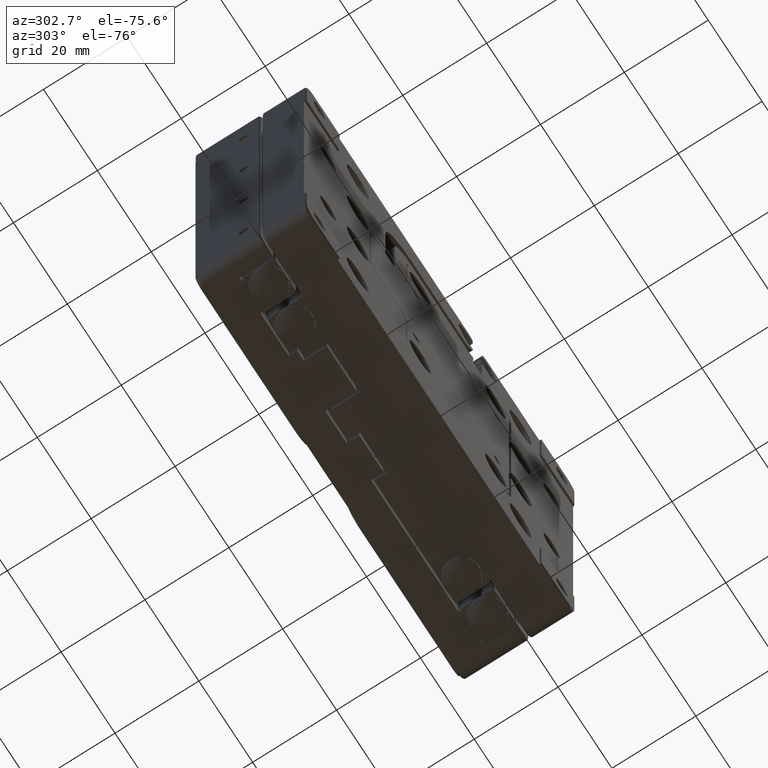
[diagram: clean part render]
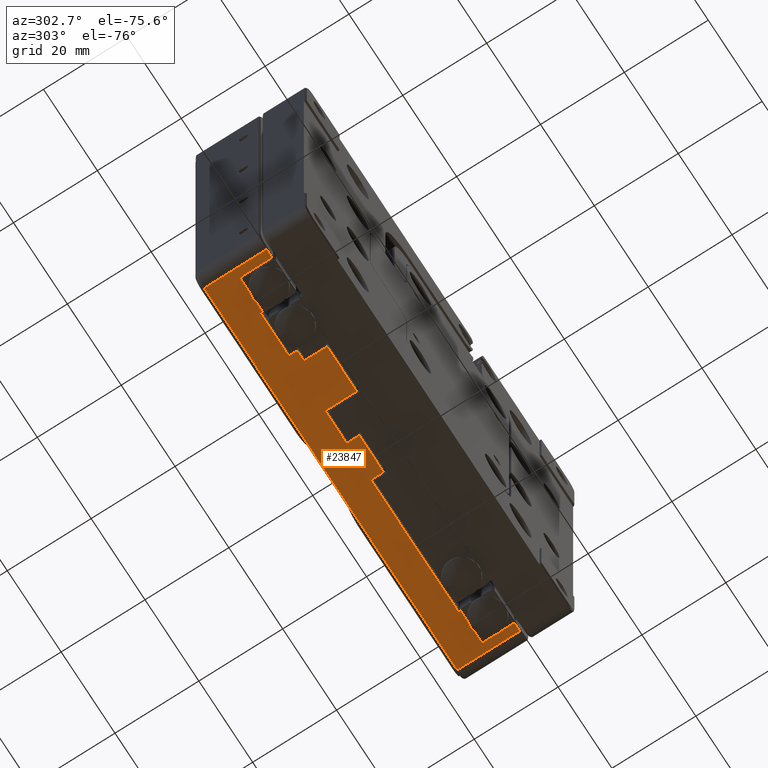
[diagram: same view with one face highlighted and labeled with its STEP entity id]
A machine part, auxiliary view. The second image highlights one B-rep face of the part: STEP entity #23847.
In plain terms, the highlighted planar face has unit normal (0, 0, -1).
Its self-contained STEP definition (entity closure, byte-faithful):
#270 = LINE ( 'NONE', #12857, #10275 ) ;
#634 = DIRECTION ( 'NONE',  ( -1.000000000000000000, 0.0000000000000000000, 0.0000000000000000000 ) ) ;
#807 = VERTEX_POINT ( 'NONE', #47446 ) ;
#926 = LINE ( 'NONE', #18123, #33596 ) ;
#1059 = EDGE_CURVE ( 'NONE', #5116, #11523, #51027, .T. ) ;
#1705 = DIRECTION ( 'NONE',  ( 0.0000000000000000000, 1.000000000000000000, 0.0000000000000000000 ) ) ;
#2328 = VECTOR ( 'NONE', #53098, 1000.000000000000000 ) ;
#2974 = VERTEX_POINT ( 'NONE', #14839 ) ;
#3600 = CARTESIAN_POINT ( 'NONE',  ( -46.99999998050000000, 0.7999999986494548100, -49.99999999986496100 ) ) ;
#4001 = CARTESIAN_POINT ( 'NONE',  ( 0.0000000000000000000, 9.000000000000001800, -50.00000000000000000 ) ) ;
#4895 = EDGE_CURVE ( 'NONE', #14455, #51653, #13799, .T. ) ;
#4983 = VERTEX_POINT ( 'NONE', #20075 ) ;
#5116 = VERTEX_POINT ( 'NONE', #31515 ) ;
#5392 = CARTESIAN_POINT ( 'NONE',  ( 0.2500000000000002200, 9.000000000000001800, -50.00000000000000000 ) ) ;
#5585 = ORIENTED_EDGE ( 'NONE', *, *, #38937, .F. ) ;
#5637 = VERTEX_POINT ( 'NONE', #39475 ) ;
#5732 = VERTEX_POINT ( 'NONE', #14512 ) ;
#5856 = ORIENTED_EDGE ( 'NONE', *, *, #43072, .F. ) ;
#6249 = ORIENTED_EDGE ( 'NONE', *, *, #20001, .F. ) ;
#6406 = CARTESIAN_POINT ( 'NONE',  ( -45.00000000000000700, 0.7999999976590731500, -49.99999999981994100 ) ) ;
#6534 = EDGE_CURVE ( 'NONE', #20882, #5116, #45702, .T. ) ;
#6672 = VERTEX_POINT ( 'NONE', #50960 ) ;
#7216 = CARTESIAN_POINT ( 'NONE',  ( 0.0000000000000000000, 7.000000000000000000, -50.00000000000000000 ) ) ;
#7227 = EDGE_CURVE ( 'NONE', #28188, #38399, #50308, .T. ) ;
#8033 = CARTESIAN_POINT ( 'NONE',  ( -36.50000000000000000, 8.249999999999998200, -50.00000000000000000 ) ) ;
#8071 = DIRECTION ( 'NONE',  ( 0.0000000000000000000, 1.000000000000000000, 0.0000000000000000000 ) ) ;
#8194 = VECTOR ( 'NONE', #50741, 1000.000000000000000 ) ;
#9048 = LINE ( 'NONE', #9943, #20382 ) ;
#9363 = DIRECTION ( 'NONE',  ( -1.000000000000000000, 0.0000000000000000000, 0.0000000000000000000 ) ) ;
#9586 = LINE ( 'NONE', #52888, #30920 ) ;
#9595 = VERTEX_POINT ( 'NONE', #33830 ) ;
#9943 = CARTESIAN_POINT ( 'NONE',  ( 37.00000000000000000, 8.750000000000000000, -50.00000000000000000 ) ) ;
#10111 = EDGE_CURVE ( 'NONE', #4983, #14455, #12071, .T. ) ;
#10275 = VECTOR ( 'NONE', #34095, 1000.000000000000000 ) ;
#10965 = CARTESIAN_POINT ( 'NONE',  ( 0.0000000000000000000, 15.70000000486000300, -50.00000000000000000 ) ) ;
#11062 = ORIENTED_EDGE ( 'NONE', *, *, #15705, .F. ) ;
#11523 = VERTEX_POINT ( 'NONE', #54824 ) ;
#12071 = LINE ( 'NONE', #39176, #24790 ) ;
#12290 = EDGE_LOOP ( 'NONE', ( #21500, #39476, #35353, #31307, #21813, #51101, #13728, #12955, #5856, #30242, #19709, #6249, #19248, #24143, #43415, #37956, #23957, #14434, #11062, #29034, #5585, #21154 ) ) ;
#12857 = CARTESIAN_POINT ( 'NONE',  ( 0.0000000000000000000, 8.500000000000000000, -49.99999999999998600 ) ) ;
#12955 = ORIENTED_EDGE ( 'NONE', *, *, #4895, .T. ) ;
#13728 = ORIENTED_EDGE ( 'NONE', *, *, #10111, .T. ) ;
#13799 = LINE ( 'NONE', #27938, #25169 ) ;
#14434 = ORIENTED_EDGE ( 'NONE', *, *, #7227, .F. ) ;
#14455 = VERTEX_POINT ( 'NONE', #25785 ) ;
#14512 = CARTESIAN_POINT ( 'NONE',  ( 45.00000000000000700, 0.7999999985597098200, -49.99999999855972300 ) ) ;
#14579 = DIRECTION ( 'NONE',  ( -1.000000000000000000, 0.0000000000000000000, 0.0000000000000000000 ) ) ;
#14839 = CARTESIAN_POINT ( 'NONE',  ( -36.50000000000000000, 9.000000000000001800, -50.00000000000000700 ) ) ;
#15010 = VERTEX_POINT ( 'NONE', #3600 ) ;
#15040 = DIRECTION ( 'NONE',  ( -0.0000000000000000000, -1.000000000000000000, -0.0000000000000000000 ) ) ;
#15426 = CARTESIAN_POINT ( 'NONE',  ( -4.499999999999997300, 8.249999999999998200, -50.00000000000000000 ) ) ;
#15592 = EDGE_CURVE ( 'NONE', #807, #5637, #270, .T. ) ;
#15705 = EDGE_CURVE ( 'NONE', #6672, #28188, #26299, .T. ) ;
#15853 = EDGE_CURVE ( 'NONE', #5732, #807, #9586, .T. ) ;
#16253 = VECTOR ( 'NONE', #51795, 1000.000000000000000 ) ;
#17550 = VECTOR ( 'NONE', #52292, 1000.000000000000000 ) ;
#17581 = EDGE_CURVE ( 'NONE', #24515, #38399, #40305, .T. ) ;
#18123 = CARTESIAN_POINT ( 'NONE',  ( -26.00000000000000400, 8.249999999999998200, -50.00000000000000000 ) ) ;
#18899 = LINE ( 'NONE', #47975, #17550 ) ;
#18978 = VECTOR ( 'NONE', #35200, 1000.000000000000000 ) ;
#19248 = ORIENTED_EDGE ( 'NONE', *, *, #38640, .F. ) ;
#19263 = VECTOR ( 'NONE', #55004, 1000.000000000000000 ) ;
#19448 = EDGE_CURVE ( 'NONE', #46479, #6672, #24832, .T. ) ;
#19709 = ORIENTED_EDGE ( 'NONE', *, *, #34519, .F. ) ;
#19771 = VECTOR ( 'NONE', #14579, 1000.000000000000000 ) ;
#19785 = CARTESIAN_POINT ( 'NONE',  ( -46.99999997153000200, 8.249999999999998200, -50.00000000000000000 ) ) ;
#20001 = EDGE_CURVE ( 'NONE', #36516, #46052, #44720, .T. ) ;
#20075 = CARTESIAN_POINT ( 'NONE',  ( -36.50000000000000700, 8.500000000000000000, -49.99999999999998600 ) ) ;
#20382 = VECTOR ( 'NONE', #48105, 1000.000000000000000 ) ;
#20463 = CARTESIAN_POINT ( 'NONE',  ( -26.00000000000000700, 9.000000000000001800, -50.00000000000000700 ) ) ;
#20882 = VERTEX_POINT ( 'NONE', #26284 ) ;
#21154 = ORIENTED_EDGE ( 'NONE', *, *, #32386, .F. ) ;
#21193 = VERTEX_POINT ( 'NONE', #20463 ) ;
#21294 = VECTOR ( 'NONE', #45068, 1000.000000000000000 ) ;
#21500 = ORIENTED_EDGE ( 'NONE', *, *, #41059, .T. ) ;
#21813 = ORIENTED_EDGE ( 'NONE', *, *, #29401, .T. ) ;
#22203 = LINE ( 'NONE', #4001, #8194 ) ;
#22957 = CARTESIAN_POINT ( 'NONE',  ( 48.88000000000000300, 0.5020000000000001100, -50.00000000000000000 ) ) ;
#23236 = CARTESIAN_POINT ( 'NONE',  ( 46.99999998348999200, 8.249999999999998200, -50.00000000000000000 ) ) ;
#23296 = CARTESIAN_POINT ( 'NONE',  ( 0.2500000000000002200, 9.000000000000001800, -50.00000000000000000 ) ) ;
#23343 = PLANE ( 'NONE',  #54155 ) ;
#23416 = DIRECTION ( 'NONE',  ( 0.0000000000000000000, 1.000000000000000000, 0.0000000000000000000 ) ) ;
#23578 = VECTOR ( 'NONE', #48395, 1000.000000000000000 ) ;
#23847 = ADVANCED_FACE ( 'NONE', ( #25750 ), #23343, .T. ) ;
#23946 = EDGE_CURVE ( 'NONE', #5637, #24515, #9048, .T. ) ;
#23957 = ORIENTED_EDGE ( 'NONE', *, *, #17581, .T. ) ;
#24143 = ORIENTED_EDGE ( 'NONE', *, *, #15853, .T. ) ;
#24515 = VERTEX_POINT ( 'NONE', #48042 ) ;
#24683 = CARTESIAN_POINT ( 'NONE',  ( 4.499999999999998200, 6.000000000000000900, -50.00000000000000700 ) ) ;
#24790 = VECTOR ( 'NONE', #9363, 1000.000000000000000 ) ;
#24832 = LINE ( 'NONE', #15426, #46100 ) ;
#25169 = VECTOR ( 'NONE', #49296, 1000.000000000000000 ) ;
#25750 = FACE_OUTER_BOUND ( 'NONE', #12290, .T. ) ;
#25785 = CARTESIAN_POINT ( 'NONE',  ( -45.00000000000000700, 8.500000000000000000, -49.99999999999998600 ) ) ;
#26238 = CARTESIAN_POINT ( 'NONE',  ( 46.99999998125833400, 15.70000000227812700, -49.99999999954437900 ) ) ;
#26284 = CARTESIAN_POINT ( 'NONE',  ( -26.00000000000000700, 7.000000000000000000, -49.99999999999999300 ) ) ;
#26299 = LINE ( 'NONE', #30566, #16253 ) ;
#27403 = DIRECTION ( 'NONE',  ( 0.0000000000000000000, 1.000000000000000000, 0.0000000000000000000 ) ) ;
#27938 = CARTESIAN_POINT ( 'NONE',  ( -45.00000000000000000, 4.499999999999950300, -49.99999999999998600 ) ) ;
#28188 = VERTEX_POINT ( 'NONE', #24683 ) ;
#28869 = CARTESIAN_POINT ( 'NONE',  ( 4.500000000000001800, 9.000000000000001800, -50.00000000000000700 ) ) ;
#29034 = ORIENTED_EDGE ( 'NONE', *, *, #19448, .F. ) ;
#29329 = CARTESIAN_POINT ( 'NONE',  ( -12.50000000000000400, 8.249999999999998200, -50.00000000000000000 ) ) ;
#29401 = EDGE_CURVE ( 'NONE', #21193, #2974, #36318, .T. ) ;
#30242 = ORIENTED_EDGE ( 'NONE', *, *, #45412, .F. ) ;
#30450 = CARTESIAN_POINT ( 'NONE',  ( -4.499999999999998200, 9.000000000000001800, -50.00000000000000700 ) ) ;
#30566 = CARTESIAN_POINT ( 'NONE',  ( 0.0000000000000000000, 6.000000000000000000, -50.00000000000000000 ) ) ;
#30920 = VECTOR ( 'NONE', #27403, 1000.000000000000000 ) ;
#31307 = ORIENTED_EDGE ( 'NONE', *, *, #42442, .F. ) ;
#31489 = CARTESIAN_POINT ( 'NONE',  ( 4.499999999999997300, 8.249999999999998200, -50.00000000000000000 ) ) ;
#31515 = CARTESIAN_POINT ( 'NONE',  ( -23.49999999999999600, 6.999999999999999100, -50.00000000000000700 ) ) ;
#31727 = CARTESIAN_POINT ( 'NONE',  ( -12.50000000000000200, 9.000000000000001800, -50.00000000000000700 ) ) ;
#32386 = EDGE_CURVE ( 'NONE', #9595, #51623, #54138, .T. ) ;
#32420 = LINE ( 'NONE', #35810, #19771 ) ;
#32615 = DIRECTION ( 'NONE',  ( -0.0000000000000000000, -1.000000000000000000, -0.0000000000000000000 ) ) ;
#33139 = CARTESIAN_POINT ( 'NONE',  ( -46.99999997034124300, 15.70000000384750100, -49.99999999898749800 ) ) ;
#33388 = VECTOR ( 'NONE', #23416, 1000.000000000000000 ) ;
#33596 = VECTOR ( 'NONE', #35246, 1000.000000000000000 ) ;
#33830 = CARTESIAN_POINT ( 'NONE',  ( -12.50000000000000200, 1.499999999999999800, -49.99999999999998600 ) ) ;
#33955 = LINE ( 'NONE', #10965, #21294 ) ;
#33982 = DIRECTION ( 'NONE',  ( 0.0000000000000000000, 0.0000000000000000000, -1.000000000000000000 ) ) ;
#34049 = EDGE_CURVE ( 'NONE', #4983, #2974, #39255, .T. ) ;
#34095 = DIRECTION ( 'NONE',  ( -1.000000000000000000, 0.0000000000000000000, 0.0000000000000000000 ) ) ;
#34519 = EDGE_CURVE ( 'NONE', #46052, #47297, #33955, .T. ) ;
#35200 = DIRECTION ( 'NONE',  ( -1.000000000000000000, -0.0000000000000000000, -0.0000000000000000000 ) ) ;
#35246 = DIRECTION ( 'NONE',  ( -0.0000000000000000000, -1.000000000000000000, -0.0000000000000000000 ) ) ;
#35310 = LINE ( 'NONE', #19785, #53992 ) ;
#35353 = ORIENTED_EDGE ( 'NONE', *, *, #6534, .F. ) ;
#35810 = CARTESIAN_POINT ( 'NONE',  ( -17.99999999999999600, 1.500000000000000000, -49.99999999999998600 ) ) ;
#36272 = CARTESIAN_POINT ( 'NONE',  ( -23.50000000000000000, 8.249999999999998200, -50.00000000000000000 ) ) ;
#36318 = LINE ( 'NONE', #23296, #2328 ) ;
#36516 = VERTEX_POINT ( 'NONE', #44785 ) ;
#37010 = DIRECTION ( 'NONE',  ( 1.000000000000000000, -0.0000000000000000000, -0.0000000000000000000 ) ) ;
#37630 = VECTOR ( 'NONE', #1705, 1000.000000000000000 ) ;
#37956 = ORIENTED_EDGE ( 'NONE', *, *, #23946, .T. ) ;
#38399 = VERTEX_POINT ( 'NONE', #28869 ) ;
#38640 = EDGE_CURVE ( 'NONE', #5732, #36516, #18899, .T. ) ;
#38778 = VECTOR ( 'NONE', #8071, 1000.000000000000000 ) ;
#38937 = EDGE_CURVE ( 'NONE', #51623, #46479, #22203, .T. ) ;
#39176 = CARTESIAN_POINT ( 'NONE',  ( 0.0000000000000000000, 8.500000000000000000, -49.99999999999998600 ) ) ;
#39255 = LINE ( 'NONE', #8033, #19263 ) ;
#39475 = CARTESIAN_POINT ( 'NONE',  ( 37.00000000000000000, 8.500000000000000000, -50.00000000000000000 ) ) ;
#39476 = ORIENTED_EDGE ( 'NONE', *, *, #1059, .F. ) ;
#39711 = VECTOR ( 'NONE', #15040, 1000.000000000000000 ) ;
#40215 = DIRECTION ( 'NONE',  ( -0.0000000000000000000, -1.000000000000000000, -0.0000000000000000000 ) ) ;
#40305 = LINE ( 'NONE', #5392, #18978 ) ;
#41059 = EDGE_CURVE ( 'NONE', #9595, #11523, #32420, .T. ) ;
#42442 = EDGE_CURVE ( 'NONE', #21193, #20882, #926, .T. ) ;
#43072 = EDGE_CURVE ( 'NONE', #15010, #51653, #54882, .T. ) ;
#43415 = ORIENTED_EDGE ( 'NONE', *, *, #15592, .T. ) ;
#44661 = CARTESIAN_POINT ( 'NONE',  ( 0.0000000000000000000, 0.7999999956783000500, -50.00000000000000000 ) ) ;
#44720 = LINE ( 'NONE', #23236, #33388 ) ;
#44785 = CARTESIAN_POINT ( 'NONE',  ( 46.99999998266499500, 0.7999999999999948300, -50.00000000000000000 ) ) ;
#45068 = DIRECTION ( 'NONE',  ( -1.000000000000000000, 0.0000000000000000000, 0.0000000000000000000 ) ) ;
#45412 = EDGE_CURVE ( 'NONE', #47297, #15010, #35310, .T. ) ;
#45702 = LINE ( 'NONE', #7216, #54391 ) ;
#46052 = VERTEX_POINT ( 'NONE', #26238 ) ;
#46100 = VECTOR ( 'NONE', #40215, 1000.000000000000000 ) ;
#46479 = VERTEX_POINT ( 'NONE', #30450 ) ;
#47297 = VERTEX_POINT ( 'NONE', #33139 ) ;
#47446 = CARTESIAN_POINT ( 'NONE',  ( 44.99999999999999300, 8.500000000000000000, -49.99999999999998600 ) ) ;
#47975 = CARTESIAN_POINT ( 'NONE',  ( 0.0000000000000000000, 0.8000000000000000400, -50.00000000000000000 ) ) ;
#48042 = CARTESIAN_POINT ( 'NONE',  ( 37.00000000000000000, 9.000000000000001800, -50.00000000000000000 ) ) ;
#48105 = DIRECTION ( 'NONE',  ( -0.0000000000000000000, 1.000000000000000000, -0.0000000000000000000 ) ) ;
#48395 = DIRECTION ( 'NONE',  ( 1.000000000000000000, -0.0000000000000000000, -0.0000000000000000000 ) ) ;
#49296 = DIRECTION ( 'NONE',  ( 0.0000000000000000000, -1.000000000000000000, 0.0000000000000000000 ) ) ;
#50308 = LINE ( 'NONE', #31489, #37630 ) ;
#50741 = DIRECTION ( 'NONE',  ( 1.000000000000000000, -0.0000000000000000000, -0.0000000000000000000 ) ) ;
#50960 = CARTESIAN_POINT ( 'NONE',  ( -4.499999999999998200, 6.000000000000000900, -49.99999999999999300 ) ) ;
#51027 = LINE ( 'NONE', #36272, #39711 ) ;
#51101 = ORIENTED_EDGE ( 'NONE', *, *, #34049, .F. ) ;
#51623 = VERTEX_POINT ( 'NONE', #31727 ) ;
#51653 = VERTEX_POINT ( 'NONE', #6406 ) ;
#51795 = DIRECTION ( 'NONE',  ( 1.000000000000000000, -0.0000000000000000000, -0.0000000000000000000 ) ) ;
#52292 = DIRECTION ( 'NONE',  ( 1.000000000000000000, -0.0000000000000000000, -0.0000000000000000000 ) ) ;
#52888 = CARTESIAN_POINT ( 'NONE',  ( 45.00000000000000000, 4.499999999999952000, -49.99999999999998600 ) ) ;
#53098 = DIRECTION ( 'NONE',  ( -1.000000000000000000, -0.0000000000000000000, -0.0000000000000000000 ) ) ;
#53992 = VECTOR ( 'NONE', #32615, 1000.000000000000000 ) ;
#54138 = LINE ( 'NONE', #29329, #38778 ) ;
#54155 = AXIS2_PLACEMENT_3D ( 'NONE', #22957, #33982, #634 ) ;
#54391 = VECTOR ( 'NONE', #37010, 1000.000000000000000 ) ;
#54824 = CARTESIAN_POINT ( 'NONE',  ( -23.49999999999999300, 1.500000000000000400, -49.99999999999998600 ) ) ;
#54882 = LINE ( 'NONE', #44661, #23578 ) ;
#55004 = DIRECTION ( 'NONE',  ( 0.0000000000000000000, 1.000000000000000000, 0.0000000000000000000 ) ) ;